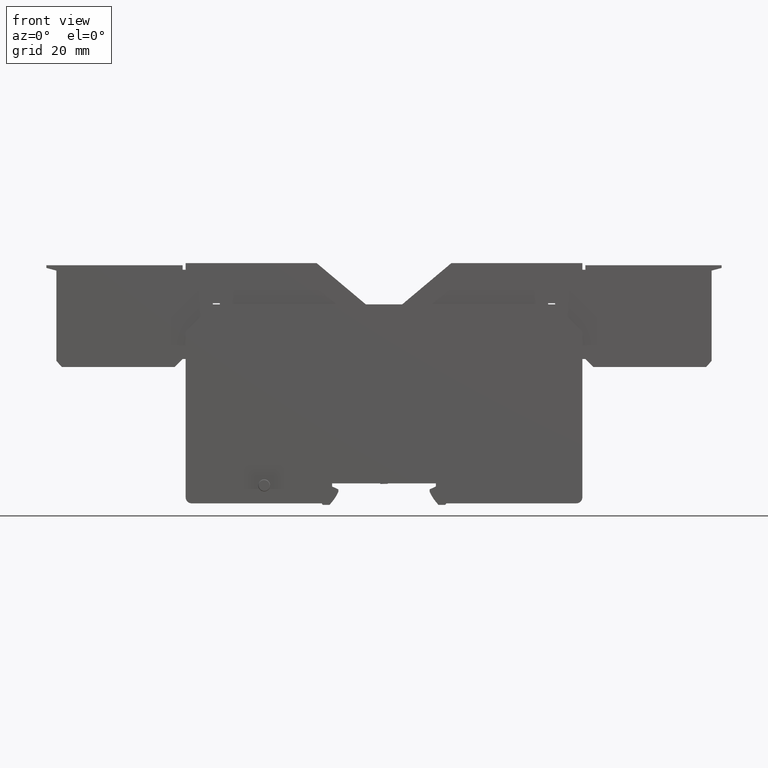
[diagram: clean part render]
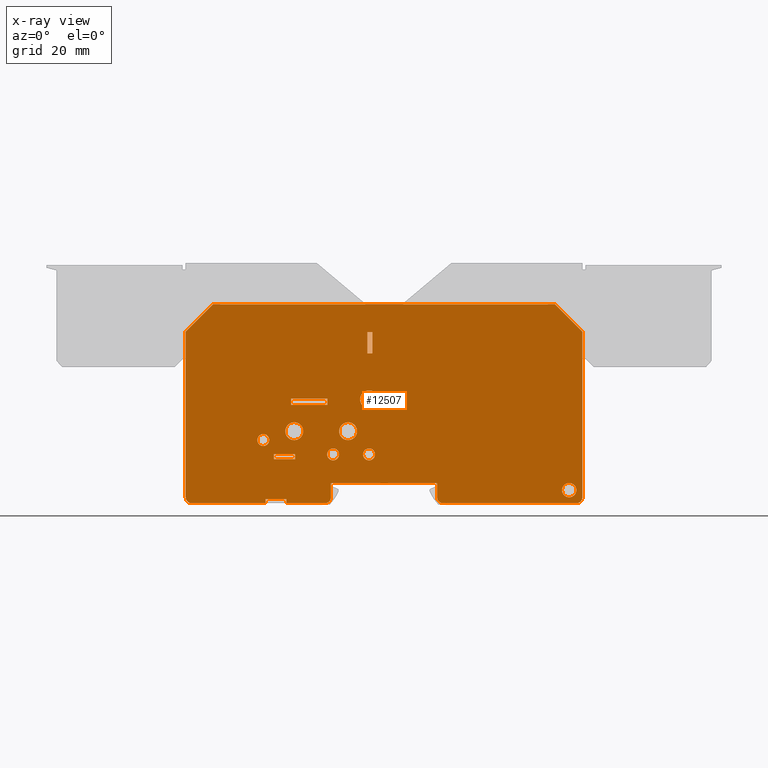
[diagram: x-ray — body ghosted, one internal face saturated and labeled with its STEP entity id]
A machine part, front view, then the same camera in x-ray: the body is ghosted and one INTERNAL B-rep face — a face not visible from any outside direction — is saturated and labeled: STEP entity #12507.
In plain terms, the highlighted planar face has unit normal (0, 1, 0).
Its self-contained STEP definition (entity closure, byte-faithful):
#358=LINE('',#19172,#1650);
#361=LINE('',#19184,#1653);
#366=LINE('',#19202,#1658);
#371=LINE('',#19225,#1663);
#372=LINE('',#19227,#1664);
#373=LINE('',#19229,#1665);
#374=LINE('',#19231,#1666);
#375=LINE('',#19233,#1667);
#376=LINE('',#19234,#1668);
#377=LINE('',#19236,#1669);
#378=LINE('',#19238,#1670);
#379=LINE('',#19240,#1671);
#380=LINE('',#19242,#1672);
#381=LINE('',#19243,#1673);
#382=LINE('',#19256,#1674);
#383=LINE('',#19259,#1675);
#384=LINE('',#19261,#1676);
#385=LINE('',#19263,#1677);
#386=LINE('',#19264,#1678);
#387=LINE('',#19267,#1679);
#388=LINE('',#19269,#1680);
#389=LINE('',#19271,#1681);
#390=LINE('',#19272,#1682);
#391=LINE('',#19275,#1683);
#392=LINE('',#19277,#1684);
#393=LINE('',#19279,#1685);
#1650=VECTOR('',#15524,1000.);
#1653=VECTOR('',#15537,1000.);
#1658=VECTOR('',#15556,1000.);
#1663=VECTOR('',#15579,1000.);
#1664=VECTOR('',#15580,1000.);
#1665=VECTOR('',#15581,1000.);
#1666=VECTOR('',#15582,1000.);
#1667=VECTOR('',#15583,1000.);
#1668=VECTOR('',#15584,1000.);
#1669=VECTOR('',#15585,1000.);
#1670=VECTOR('',#15586,1000.);
#1671=VECTOR('',#15587,1000.);
#1672=VECTOR('',#15588,1000.);
#1673=VECTOR('',#15589,1000.);
#1674=VECTOR('',#15602,1000.);
#1675=VECTOR('',#15603,1000.);
#1676=VECTOR('',#15604,1000.);
#1677=VECTOR('',#15605,1000.);
#1678=VECTOR('',#15606,1000.);
#1679=VECTOR('',#15607,1000.);
#1680=VECTOR('',#15608,1000.);
#1681=VECTOR('',#15609,1000.);
#1682=VECTOR('',#15610,1000.);
#1683=VECTOR('',#15611,1000.);
#1684=VECTOR('',#15612,1000.);
#1685=VECTOR('',#15613,1000.);
#3157=ORIENTED_EDGE('',*,*,#6892,.F.);
#3158=ORIENTED_EDGE('',*,*,#6906,.F.);
#3159=ORIENTED_EDGE('',*,*,#6904,.F.);
#3160=ORIENTED_EDGE('',*,*,#6916,.F.);
#3161=ORIENTED_EDGE('',*,*,#6917,.T.);
#3162=ORIENTED_EDGE('',*,*,#6918,.T.);
#3163=ORIENTED_EDGE('',*,*,#6919,.F.);
#3164=ORIENTED_EDGE('',*,*,#6920,.F.);
#3165=ORIENTED_EDGE('',*,*,#6915,.F.);
#3166=ORIENTED_EDGE('',*,*,#6921,.F.);
#3167=ORIENTED_EDGE('',*,*,#6922,.F.);
#3168=ORIENTED_EDGE('',*,*,#6923,.T.);
#3169=ORIENTED_EDGE('',*,*,#6924,.F.);
#3170=ORIENTED_EDGE('',*,*,#6925,.T.);
#3171=ORIENTED_EDGE('',*,*,#6911,.T.);
#3172=ORIENTED_EDGE('',*,*,#6926,.T.);
#3173=ORIENTED_EDGE('',*,*,#6900,.F.);
#3174=ORIENTED_EDGE('',*,*,#6897,.F.);
#3175=ORIENTED_EDGE('',*,*,#6894,.F.);
#3176=ORIENTED_EDGE('',*,*,#6927,.F.);
#3177=ORIENTED_EDGE('',*,*,#6928,.T.);
#3178=ORIENTED_EDGE('',*,*,#6929,.T.);
#3179=ORIENTED_EDGE('',*,*,#6930,.T.);
#3180=ORIENTED_EDGE('',*,*,#6931,.T.);
#3181=ORIENTED_EDGE('',*,*,#6932,.T.);
#3182=ORIENTED_EDGE('',*,*,#6933,.F.);
#3183=ORIENTED_EDGE('',*,*,#6934,.T.);
#3184=ORIENTED_EDGE('',*,*,#6935,.T.);
#3185=ORIENTED_EDGE('',*,*,#6936,.T.);
#3186=ORIENTED_EDGE('',*,*,#6937,.F.);
#3187=ORIENTED_EDGE('',*,*,#6938,.F.);
#3188=ORIENTED_EDGE('',*,*,#6939,.T.);
#3189=ORIENTED_EDGE('',*,*,#6940,.F.);
#3190=ORIENTED_EDGE('',*,*,#6941,.T.);
#3191=ORIENTED_EDGE('',*,*,#6942,.T.);
#3192=ORIENTED_EDGE('',*,*,#6943,.T.);
#3193=ORIENTED_EDGE('',*,*,#6944,.F.);
#6892=EDGE_CURVE('',#8776,#8773,#358,.T.);
#6894=EDGE_CURVE('',#8778,#8778,#10054,.T.);
#6897=EDGE_CURVE('',#8773,#8779,#361,.T.);
#6900=EDGE_CURVE('',#8779,#8781,#10056,.F.);
#6904=EDGE_CURVE('',#8786,#8783,#10058,.F.);
#6906=EDGE_CURVE('',#8783,#8776,#366,.T.);
#6911=EDGE_CURVE('',#8788,#8791,#10061,.T.);
#6915=EDGE_CURVE('',#8795,#8792,#10063,.T.);
#6916=EDGE_CURVE('',#8796,#8786,#371,.T.);
#6917=EDGE_CURVE('',#8796,#8797,#372,.T.);
#6918=EDGE_CURVE('',#8797,#8798,#373,.T.);
#6919=EDGE_CURVE('',#8799,#8798,#374,.T.);
#6920=EDGE_CURVE('',#8792,#8799,#375,.T.);
#6921=EDGE_CURVE('',#8800,#8795,#376,.T.);
#6922=EDGE_CURVE('',#8801,#8800,#377,.T.);
#6923=EDGE_CURVE('',#8801,#8802,#378,.T.);
#6924=EDGE_CURVE('',#8803,#8802,#379,.T.);
#6925=EDGE_CURVE('',#8803,#8788,#380,.T.);
#6926=EDGE_CURVE('',#8791,#8781,#381,.T.);
#6927=EDGE_CURVE('',#8804,#8804,#10064,.T.);
#6928=EDGE_CURVE('',#8805,#8805,#10065,.F.);
#6929=EDGE_CURVE('',#8806,#8806,#10066,.F.);
#6930=EDGE_CURVE('',#8807,#8807,#10067,.T.);
#6931=EDGE_CURVE('',#8808,#8808,#10068,.T.);
#6932=EDGE_CURVE('',#8809,#8809,#10069,.T.);
#6933=EDGE_CURVE('',#8810,#8811,#382,.T.);
#6934=EDGE_CURVE('',#8810,#8812,#383,.T.);
#6935=EDGE_CURVE('',#8812,#8813,#384,.T.);
#6936=EDGE_CURVE('',#8813,#8811,#385,.T.);
#6937=EDGE_CURVE('',#8814,#8815,#386,.T.);
#6938=EDGE_CURVE('',#8816,#8814,#387,.T.);
#6939=EDGE_CURVE('',#8816,#8817,#388,.T.);
#6940=EDGE_CURVE('',#8815,#8817,#389,.T.);
#6941=EDGE_CURVE('',#8818,#8819,#390,.T.);
#6942=EDGE_CURVE('',#8819,#8820,#391,.T.);
#6943=EDGE_CURVE('',#8820,#8821,#392,.T.);
#6944=EDGE_CURVE('',#8818,#8821,#393,.T.);
#8773=VERTEX_POINT('',#19166);
#8776=VERTEX_POINT('',#19171);
#8778=VERTEX_POINT('',#19178);
#8779=VERTEX_POINT('',#19181);
#8781=VERTEX_POINT('',#19187);
#8783=VERTEX_POINT('',#19193);
#8786=VERTEX_POINT('',#19198);
#8788=VERTEX_POINT('',#19208);
#8791=VERTEX_POINT('',#19213);
#8792=VERTEX_POINT('',#19217);
#8795=VERTEX_POINT('',#19222);
#8796=VERTEX_POINT('',#19226);
#8797=VERTEX_POINT('',#19228);
#8798=VERTEX_POINT('',#19230);
#8799=VERTEX_POINT('',#19232);
#8800=VERTEX_POINT('',#19235);
#8801=VERTEX_POINT('',#19237);
#8802=VERTEX_POINT('',#19239);
#8803=VERTEX_POINT('',#19241);
#8804=VERTEX_POINT('',#19245);
#8805=VERTEX_POINT('',#19247);
#8806=VERTEX_POINT('',#19249);
#8807=VERTEX_POINT('',#19251);
#8808=VERTEX_POINT('',#19253);
#8809=VERTEX_POINT('',#19255);
#8810=VERTEX_POINT('',#19257);
#8811=VERTEX_POINT('',#19258);
#8812=VERTEX_POINT('',#19260);
#8813=VERTEX_POINT('',#19262);
#8814=VERTEX_POINT('',#19265);
#8815=VERTEX_POINT('',#19266);
#8816=VERTEX_POINT('',#19268);
#8817=VERTEX_POINT('',#19270);
#8818=VERTEX_POINT('',#19273);
#8819=VERTEX_POINT('',#19274);
#8820=VERTEX_POINT('',#19276);
#8821=VERTEX_POINT('',#19278);
#10054=CIRCLE('',#14334,2.4);
#10056=CIRCLE('',#14338,2.);
#10058=CIRCLE('',#14341,2.);
#10061=CIRCLE('',#14347,2.);
#10063=CIRCLE('',#14350,2.);
#10064=CIRCLE('',#14352,3.);
#10065=CIRCLE('',#14353,3.);
#10066=CIRCLE('',#14354,3.);
#10067=CIRCLE('',#14355,2.);
#10068=CIRCLE('',#14356,2.);
#10069=CIRCLE('',#14357,2.);
#10404=EDGE_LOOP('',(#3157,#3158,#3159,#3160,#3161,#3162,#3163,#3164,#3165,
#3166,#3167,#3168,#3169,#3170,#3171,#3172,#3173,#3174));
#10405=EDGE_LOOP('',(#3175));
#10406=EDGE_LOOP('',(#3176));
#10407=EDGE_LOOP('',(#3177));
#10408=EDGE_LOOP('',(#3178));
#10409=EDGE_LOOP('',(#3179));
#10410=EDGE_LOOP('',(#3180));
#10411=EDGE_LOOP('',(#3181));
#10412=EDGE_LOOP('',(#3182,#3183,#3184,#3185));
#10413=EDGE_LOOP('',(#3186,#3187,#3188,#3189));
#10414=EDGE_LOOP('',(#3190,#3191,#3192,#3193));
#11196=FACE_BOUND('',#10404,.T.);
#11197=FACE_BOUND('',#10405,.T.);
#11198=FACE_BOUND('',#10406,.T.);
#11199=FACE_BOUND('',#10407,.T.);
#11200=FACE_BOUND('',#10408,.T.);
#11201=FACE_BOUND('',#10409,.T.);
#11202=FACE_BOUND('',#10410,.T.);
#11203=FACE_BOUND('',#10411,.T.);
#11204=FACE_BOUND('',#10412,.T.);
#11205=FACE_BOUND('',#10413,.T.);
#11206=FACE_BOUND('',#10414,.T.);
#11973=PLANE('',#14351);
#12507=ADVANCED_FACE('',(#11196,#11197,#11198,#11199,#11200,#11201,#11202,
#11203,#11204,#11205,#11206),#11973,.T.);
#14334=AXIS2_PLACEMENT_3D('',#19177,#15531,#15532);
#14338=AXIS2_PLACEMENT_3D('',#19190,#15543,#15544);
#14341=AXIS2_PLACEMENT_3D('',#19199,#15551,#15552);
#14347=AXIS2_PLACEMENT_3D('',#19214,#15567,#15568);
#14350=AXIS2_PLACEMENT_3D('',#19223,#15575,#15576);
#14351=AXIS2_PLACEMENT_3D('',#19224,#15577,#15578);
#14352=AXIS2_PLACEMENT_3D('',#19244,#15590,#15591);
#14353=AXIS2_PLACEMENT_3D('',#19246,#15592,#15593);
#14354=AXIS2_PLACEMENT_3D('',#19248,#15594,#15595);
#14355=AXIS2_PLACEMENT_3D('',#19250,#15596,#15597);
#14356=AXIS2_PLACEMENT_3D('',#19252,#15598,#15599);
#14357=AXIS2_PLACEMENT_3D('',#19254,#15600,#15601);
#15524=DIRECTION('',(1.,0.,0.));
#15531=DIRECTION('',(0.,1.,0.));
#15532=DIRECTION('',(0.,0.,1.));
#15537=DIRECTION('',(0.,0.,-1.));
#15543=DIRECTION('',(0.,1.,0.));
#15544=DIRECTION('',(0.,0.,1.));
#15551=DIRECTION('',(0.,1.,0.));
#15552=DIRECTION('',(0.,0.,1.));
#15556=DIRECTION('',(0.,0.,1.));
#15567=DIRECTION('',(0.,1.,0.));
#15568=DIRECTION('',(-1.,0.,0.));
#15575=DIRECTION('',(0.,-1.,0.));
#15576=DIRECTION('',(-1.,0.,0.));
#15577=DIRECTION('',(0.,1.,0.));
#15578=DIRECTION('',(0.,0.,1.));
#15579=DIRECTION('',(1.,0.,0.));
#15580=DIRECTION('',(0.,0.,1.));
#15581=DIRECTION('',(-1.,0.,0.));
#15582=DIRECTION('',(0.,0.,1.));
#15583=DIRECTION('',(1.,0.,0.));
#15584=DIRECTION('',(0.,0.,-1.));
#15585=DIRECTION('',(-0.7071067811866,0.,-0.707106781186495));
#15586=DIRECTION('',(1.,0.,0.));
#15587=DIRECTION('',(-0.707106781186601,0.,0.707106781186495));
#15588=DIRECTION('',(0.,0.,-1.));
#15589=DIRECTION('',(-1.,0.,0.));
#15590=DIRECTION('',(0.,1.,0.));
#15591=DIRECTION('',(0.,0.,1.));
#15592=DIRECTION('',(0.,1.,0.));
#15593=DIRECTION('',(0.,0.,1.));
#15594=DIRECTION('',(0.,1.,0.));
#15595=DIRECTION('',(0.,0.,1.));
#15596=DIRECTION('',(0.,-1.,0.));
#15597=DIRECTION('',(-1.,0.,0.));
#15598=DIRECTION('',(0.,-1.,0.));
#15599=DIRECTION('',(-1.,0.,0.));
#15600=DIRECTION('',(0.,-1.,0.));
#15601=DIRECTION('',(-1.,0.,0.));
#15602=DIRECTION('',(0.,0.,1.));
#15603=DIRECTION('',(1.,0.,0.));
#15604=DIRECTION('',(0.,0.,1.));
#15605=DIRECTION('',(-1.,0.,0.));
#15606=DIRECTION('',(0.,0.,1.));
#15607=DIRECTION('',(-1.,0.,0.));
#15608=DIRECTION('',(0.,0.,1.));
#15609=DIRECTION('',(1.,0.,0.));
#15610=DIRECTION('',(0.,0.,-1.));
#15611=DIRECTION('',(1.,0.,0.));
#15612=DIRECTION('',(0.,0.,1.));
#15613=DIRECTION('',(1.,0.,0.));
#19166=CARTESIAN_POINT('',(17.75,21.,-22.9900000000006));
#19171=CARTESIAN_POINT('',(-17.75,21.,-22.9900000000006));
#19172=CARTESIAN_POINT('',(-2.3,21.,-22.9900000000006));
#19177=CARTESIAN_POINT('',(61.9,21.,-25.2900000000007));
#19178=CARTESIAN_POINT('',(61.9,21.,-22.8900000000007));
#19181=CARTESIAN_POINT('',(17.75,21.,-27.6900000000007));
#19184=CARTESIAN_POINT('',(17.75,21.,-22.9900000000006));
#19187=CARTESIAN_POINT('',(19.75,21.,-29.6900000000007));
#19190=CARTESIAN_POINT('',(19.75,21.,-27.6900000000007));
#19193=CARTESIAN_POINT('',(-17.75,21.,-27.6900000000007));
#19198=CARTESIAN_POINT('',(-19.75,21.,-29.6900000000007));
#19199=CARTESIAN_POINT('',(-19.75,21.,-27.6900000000007));
#19202=CARTESIAN_POINT('',(-17.75,21.,-27.6900000000007));
#19208=CARTESIAN_POINT('',(66.3,21.,-27.6900000000007));
#19213=CARTESIAN_POINT('',(64.3,21.,-29.6900000000007));
#19214=CARTESIAN_POINT('',(64.3,21.,-27.6900000000007));
#19217=CARTESIAN_POINT('',(-64.3,21.,-29.6900000000007));
#19222=CARTESIAN_POINT('',(-66.3,21.,-27.6900000000007));
#19223=CARTESIAN_POINT('',(-64.3,21.,-27.6900000000007));
#19224=CARTESIAN_POINT('',(64.3,21.,-27.6900000000007));
#19225=CARTESIAN_POINT('',(-43.5,21.,-29.6900000000007));
#19226=CARTESIAN_POINT('',(-32.62,21.,-29.6900000000007));
#19227=CARTESIAN_POINT('',(-32.62,21.,-27.1900000000007));
#19228=CARTESIAN_POINT('',(-32.62,21.,-28.2169266654474));
#19229=CARTESIAN_POINT('',(-39.62,21.,-28.2169266654474));
#19230=CARTESIAN_POINT('',(-39.62,21.,-28.2169266654474));
#19231=CARTESIAN_POINT('',(-39.62,21.,-27.1900000000007));
#19232=CARTESIAN_POINT('',(-39.62,21.,-29.6900000000007));
#19233=CARTESIAN_POINT('',(-64.3,21.,-29.6900000000007));
#19234=CARTESIAN_POINT('',(-66.3,21.,-20.6900000000007));
#19235=CARTESIAN_POINT('',(-66.3,21.,27.6900000000007));
#19236=CARTESIAN_POINT('',(-57.1799999999999,21.,36.8099999999994));
#19237=CARTESIAN_POINT('',(-57.1799999999999,21.,36.8099999999994));
#19238=CARTESIAN_POINT('',(-9.00000000000001,21.,36.8099999999993));
#19239=CARTESIAN_POINT('',(57.18,21.,36.8099999999993));
#19240=CARTESIAN_POINT('',(66.3,21.,27.6900000000007));
#19241=CARTESIAN_POINT('',(66.3,21.,27.6900000000007));
#19242=CARTESIAN_POINT('',(66.3,21.,-20.6900000000007));
#19243=CARTESIAN_POINT('',(64.3,21.,-29.6900000000007));
#19244=CARTESIAN_POINT('',(-5.00000000000001,21.,5.05999999999934));
#19245=CARTESIAN_POINT('',(-5.00000000000001,21.,8.05999999999934));
#19246=CARTESIAN_POINT('',(-30.,21.,-5.59000000000065));
#19247=CARTESIAN_POINT('',(-30.,21.,-2.59000000000065));
#19248=CARTESIAN_POINT('',(-12.,21.,-5.59000000000065));
#19249=CARTESIAN_POINT('',(-12.,21.,-2.59000000000065));
#19250=CARTESIAN_POINT('',(-4.99999999999993,21.,-13.3400000000006));
#19251=CARTESIAN_POINT('',(-6.99999999999993,21.,-13.3400000000006));
#19252=CARTESIAN_POINT('',(-16.9999999999999,21.,-13.3400000000006));
#19253=CARTESIAN_POINT('',(-18.9999999999999,21.,-13.3400000000006));
#19254=CARTESIAN_POINT('',(-40.35,21.,-8.54000000000068));
#19255=CARTESIAN_POINT('',(-42.35,21.,-8.54000000000068));
#19256=CARTESIAN_POINT('',(-31.05,21.,6.51999860420106));
#19257=CARTESIAN_POINT('',(-31.05,21.,3.20999999999933));
#19258=CARTESIAN_POINT('',(-31.05,21.,5.34070654536943));
#19259=CARTESIAN_POINT('',(-18.95,21.,3.20999999999933));
#19260=CARTESIAN_POINT('',(-18.95,21.,3.20999999999933));
#19261=CARTESIAN_POINT('',(-18.95,21.,6.51999860420106));
#19262=CARTESIAN_POINT('',(-18.95,21.,5.34070654536943));
#19263=CARTESIAN_POINT('',(-18.95,21.,5.34070654536943));
#19264=CARTESIAN_POINT('',(-36.8,21.,-14.0355536175537));
#19265=CARTESIAN_POINT('',(-36.8,21.,-14.94799428579));
#19266=CARTESIAN_POINT('',(-36.8,21.,-13.2900000000004));
#19267=CARTESIAN_POINT('',(-29.7,21.,-14.94799428579));
#19268=CARTESIAN_POINT('',(-29.7,21.,-14.94799428579));
#19269=CARTESIAN_POINT('',(-29.7,21.,-14.0355536175537));
#19270=CARTESIAN_POINT('',(-29.7,21.,-13.2900000000003));
#19271=CARTESIAN_POINT('',(-29.7,21.,-13.2900000000004));
#19272=CARTESIAN_POINT('',(-5.56148529877526,21.,27.5599999999993));
#19273=CARTESIAN_POINT('',(-5.56148529877526,21.,27.5599999999993));
#19274=CARTESIAN_POINT('',(-5.56148529877526,21.,20.4599999999993));
#19275=CARTESIAN_POINT('',(-4.64555361755333,21.,20.4599999999993));
#19276=CARTESIAN_POINT('',(-3.90000000000001,21.,20.4599999999993));
#19277=CARTESIAN_POINT('',(-3.90000000000001,21.,27.5599999999993));
#19278=CARTESIAN_POINT('',(-3.90000000000001,21.,27.5599999999993));
#19279=CARTESIAN_POINT('',(-4.64555361755333,21.,27.5599999999993));